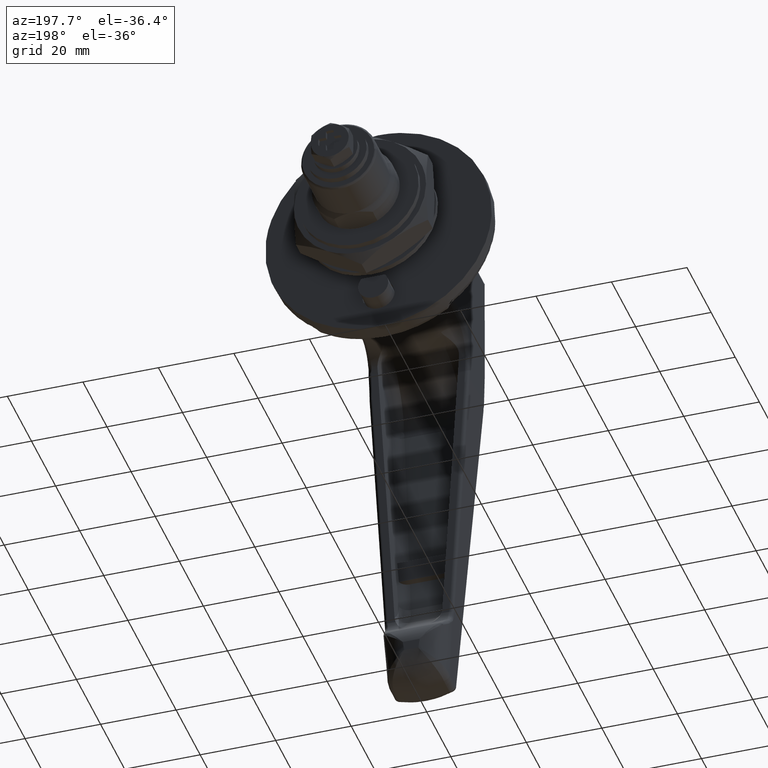
[diagram: clean part render]
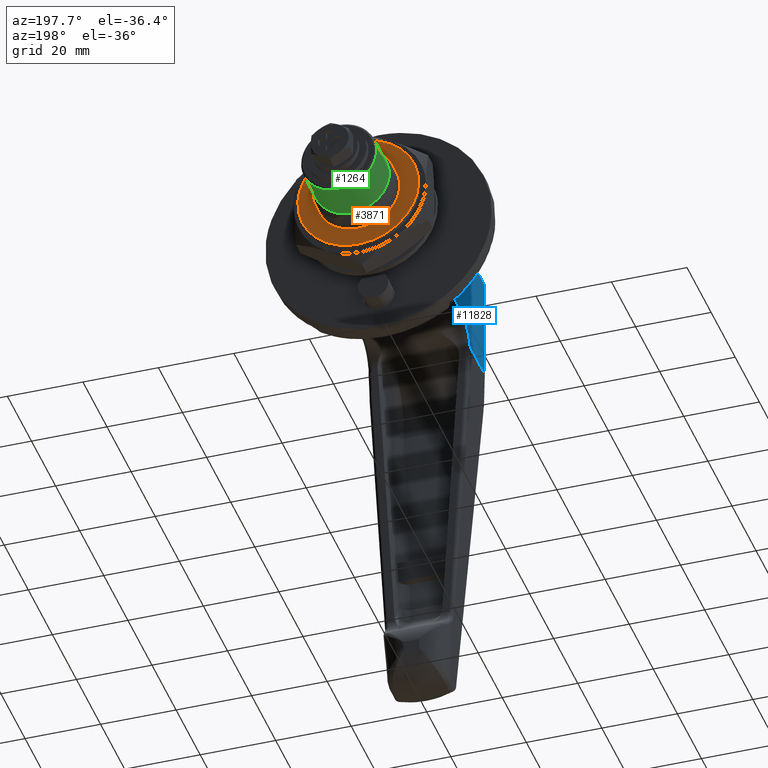
[diagram: same view with three faces highlighted in distinct colors, each labeled with its STEP entity id]
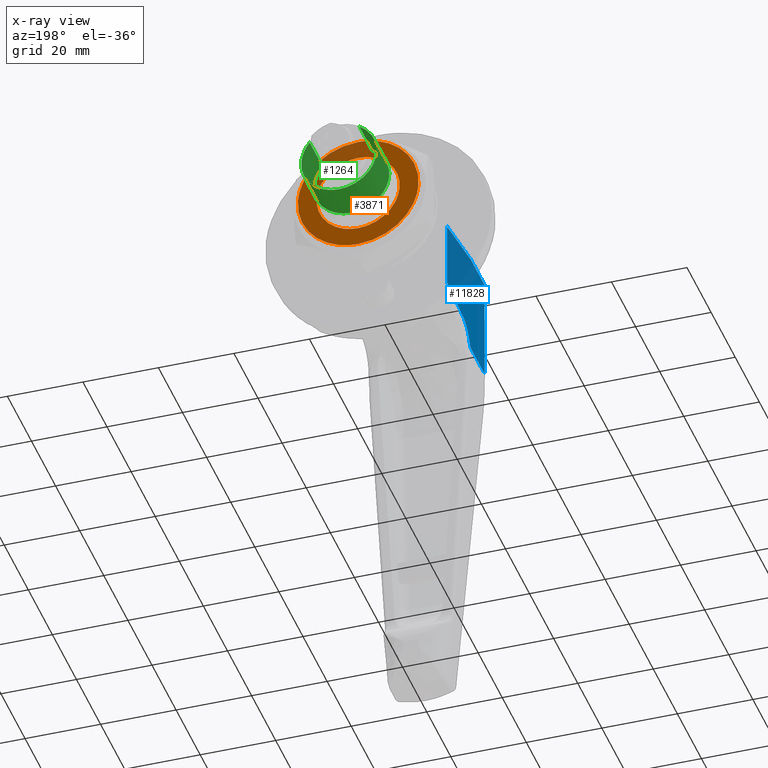
[diagram: x-ray of the same camera — body ghosted, the three highlighted faces saturated]
A machine part, auxiliary view with three faces highlighted in distinct colors.
The next image is the same camera in x-ray (body ghosted, the three faces saturated) — at least one of them is partly hidden behind the body in this view.
Their STEP definitions:

[orange] entity #3871 — the highlighted face is a freeform B-spline surface patch.
#2570=CARTESIAN_POINT('',(62.467903000000092,0.0,10.999999930245510));
#2571=VERTEX_POINT('',#2570);
#2572=CARTESIAN_POINT('',(62.467903000000092,-10.966090671041730,0.863049983539866));
#2573=VERTEX_POINT('',#2572);
#2574=CARTESIAN_POINT('',(62.467903000000092,0.0,10.999999930245510));
#2575=CARTESIAN_POINT('',(62.467903000000092,-10.168295407704424,10.999999930245508));
#2576=CARTESIAN_POINT('',(62.467903000000106,-10.966090671041732,0.863049983539866));
#2584=(BOUNDED_CURVE()B_SPLINE_CURVE(2,(#2574,#2575,#2576),.UNSPECIFIED.,.F.,.U.)B_SPLINE_CURVE_WITH_KNOTS((3,3),(0.0,0.236331300623761),.UNSPECIFIED.)CURVE()GEOMETRIC_REPRESENTATION_ITEM()RATIONAL_B_SPLINE_CURVE((1.0,0.723120658615748,0.969723356153021))REPRESENTATION_ITEM(''));
#2585=EDGE_CURVE('',#2571,#2573,#2584,.T.);
#2626=CARTESIAN_POINT('',(62.467903000000092,10.966090671041741,-0.863050123048846));
#2627=VERTEX_POINT('',#2626);
#2633=CARTESIAN_POINT('',(62.467903000000106,10.966090671041732,-0.863050123048846));
#2634=CARTESIAN_POINT('',(62.467903000000092,11.000000000000004,-0.432191247128252));
#2635=CARTESIAN_POINT('',(62.467903000000092,11.0,-0.000000069754492));
#2636=CARTESIAN_POINT('',(62.467903000000092,11.0,10.999999930245508));
#2637=CARTESIAN_POINT('',(62.467903000000092,0.0,10.999999930245510));
#2645=(BOUNDED_CURVE()B_SPLINE_CURVE(2,(#2633,#2634,#2635,#2636,#2637),.UNSPECIFIED.,.F.,.U.)B_SPLINE_CURVE_WITH_KNOTS((3,2,3),(0.736331300623761,0.750000000000000,1.0),.UNSPECIFIED.)CURVE()GEOMETRIC_REPRESENTATION_ITEM()RATIONAL_B_SPLINE_CURVE((0.969723356153021,0.983986122570800,1.0,0.707106781186548,1.0))REPRESENTATION_ITEM(''));
#2646=EDGE_CURVE('',#2627,#2571,#2645,.T.);
#2669=CARTESIAN_POINT('',(62.467903000000092,0.0,-11.000000069754490));
#2670=VERTEX_POINT('',#2669);
#2671=CARTESIAN_POINT('',(62.467903000000092,-10.966090671041734,0.863049983539866));
#2672=CARTESIAN_POINT('',(62.467903000000092,-11.000000000000005,0.432191107619271));
#2673=CARTESIAN_POINT('',(62.467903000000092,-11.0,-0.000000069754492));
#2674=CARTESIAN_POINT('',(62.467903000000092,-11.0,-11.000000069754492));
#2675=CARTESIAN_POINT('',(62.467903000000092,0.0,-11.000000069754490));
#2683=(BOUNDED_CURVE()B_SPLINE_CURVE(2,(#2671,#2672,#2673,#2674,#2675),.UNSPECIFIED.,.F.,.U.)B_SPLINE_CURVE_WITH_KNOTS((3,2,3),(0.236331300623761,0.250000000000000,0.500000000000000),.UNSPECIFIED.)CURVE()GEOMETRIC_REPRESENTATION_ITEM()RATIONAL_B_SPLINE_CURVE((0.969723356153021,0.983986122570800,1.0,0.707106781186548,1.0))REPRESENTATION_ITEM(''));
#2684=EDGE_CURVE('',#2573,#2670,#2683,.T.);
#2686=CARTESIAN_POINT('',(62.467903000000092,0.0,-11.000000069754490));
#2687=CARTESIAN_POINT('',(62.467903000000085,10.168295407704367,-11.000000069754492));
#2688=CARTESIAN_POINT('',(62.467903000000092,10.966090671041734,-0.863050123048846));
#2696=(BOUNDED_CURVE()B_SPLINE_CURVE(2,(#2686,#2687,#2688),.UNSPECIFIED.,.F.,.U.)B_SPLINE_CURVE_WITH_KNOTS((3,3),(0.500000000000000,0.736331300623760),.UNSPECIFIED.)CURVE()GEOMETRIC_REPRESENTATION_ITEM()RATIONAL_B_SPLINE_CURVE((1.0,0.723120658615749,0.969723356153019))REPRESENTATION_ITEM(''));
#2697=EDGE_CURVE('',#2670,#2627,#2696,.T.);
#2752=CARTESIAN_POINT('',(62.467903000000092,0.0,-16.000000069754488));
#2753=VERTEX_POINT('',#2752);
#2754=CARTESIAN_POINT('',(62.467903000000092,15.950677339713121,-1.255345601615007));
#2755=VERTEX_POINT('',#2754);
#2756=CARTESIAN_POINT('',(62.467903000000092,0.0,-16.000000069754488));
#2757=CARTESIAN_POINT('',(62.467903000000085,14.790247866131336,-16.000000069754485));
#2758=CARTESIAN_POINT('',(62.467903000000092,15.950677339713121,-1.255345601615007));
#2766=(BOUNDED_CURVE()B_SPLINE_CURVE(2,(#2756,#2757,#2758),.UNSPECIFIED.,.F.,.U.)B_SPLINE_CURVE_WITH_KNOTS((3,3),(0.500000000000000,0.736331300628145),.UNSPECIFIED.)CURVE()GEOMETRIC_REPRESENTATION_ITEM()RATIONAL_B_SPLINE_CURVE((1.0,0.723120658610611,0.969723356162171))REPRESENTATION_ITEM(''));
#2767=EDGE_CURVE('',#2753,#2755,#2766,.T.);
#2769=CARTESIAN_POINT('',(62.467903000000092,-15.950677339713121,1.255345462106023));
#2770=VERTEX_POINT('',#2769);
#2771=CARTESIAN_POINT('',(62.467903000000092,-15.950677339713124,1.255345462106022));
#2772=CARTESIAN_POINT('',(62.467903000000085,-16.0,0.628641642584210));
#2773=CARTESIAN_POINT('',(62.467903000000092,-16.0,-0.000000069754492));
#2774=CARTESIAN_POINT('',(62.467903000000092,-15.999999999999998,-16.000000069754499));
#2775=CARTESIAN_POINT('',(62.467903000000092,0.0,-16.000000069754488));
#2783=(BOUNDED_CURVE()B_SPLINE_CURVE(2,(#2771,#2772,#2773,#2774,#2775),.UNSPECIFIED.,.F.,.U.)B_SPLINE_CURVE_WITH_KNOTS((3,2,3),(0.236331300628146,0.250000000000000,0.500000000000000),.UNSPECIFIED.)CURVE()GEOMETRIC_REPRESENTATION_ITEM()RATIONAL_B_SPLINE_CURVE((0.969723356162172,0.983986122575937,1.0,0.707106781186548,1.0))REPRESENTATION_ITEM(''));
#2784=EDGE_CURVE('',#2770,#2753,#2783,.T.);
#2851=CARTESIAN_POINT('',(62.467903000000092,0.0,15.999999930245510));
#2852=VERTEX_POINT('',#2851);
#2853=CARTESIAN_POINT('',(62.467903000000092,15.950677339713126,-1.255345601615007));
#2854=CARTESIAN_POINT('',(62.467903000000099,16.000000000000004,-0.628641782093196));
#2855=CARTESIAN_POINT('',(62.467903000000092,16.0,-0.000000069754492));
#2856=CARTESIAN_POINT('',(62.467903000000092,15.999999999999998,15.999999930245512));
#2857=CARTESIAN_POINT('',(62.467903000000092,0.0,15.999999930245510));
#2865=(BOUNDED_CURVE()B_SPLINE_CURVE(2,(#2853,#2854,#2855,#2856,#2857),.UNSPECIFIED.,.F.,.U.)B_SPLINE_CURVE_WITH_KNOTS((3,2,3),(0.736331300628146,0.750000000000000,1.0),.UNSPECIFIED.)CURVE()GEOMETRIC_REPRESENTATION_ITEM()RATIONAL_B_SPLINE_CURVE((0.969723356162172,0.983986122575937,1.0,0.707106781186548,1.0))REPRESENTATION_ITEM(''));
#2866=EDGE_CURVE('',#2755,#2852,#2865,.T.);
#2900=CARTESIAN_POINT('',(62.467903000000092,0.0,15.999999930245510));
#2901=CARTESIAN_POINT('',(62.467903000000085,-14.790247866131390,15.999999930245512));
#2902=CARTESIAN_POINT('',(62.467903000000092,-15.950677339713124,1.255345462106022));
#2910=(BOUNDED_CURVE()B_SPLINE_CURVE(2,(#2900,#2901,#2902),.UNSPECIFIED.,.F.,.U.)B_SPLINE_CURVE_WITH_KNOTS((3,3),(0.0,0.236331300628146),.UNSPECIFIED.)CURVE()GEOMETRIC_REPRESENTATION_ITEM()RATIONAL_B_SPLINE_CURVE((1.0,0.723120658610611,0.969723356162172))REPRESENTATION_ITEM(''));
#2911=EDGE_CURVE('',#2852,#2770,#2910,.T.);
#3854=CARTESIAN_POINT('',(62.467903000000000,-17.593516043629570,17.598400168616401));
#3855=CARTESIAN_POINT('',(62.467903000000000,17.593516901936461,17.598400168616401));
#3856=CARTESIAN_POINT('',(62.467903000000000,-17.593516043629570,-17.598400880329979));
#3857=CARTESIAN_POINT('',(62.467903000000000,17.593516901936461,-17.598400880329979));
#3858=B_SPLINE_SURFACE_WITH_KNOTS('',1,1,((#3854,#3856),(#3855,#3857)),.UNSPECIFIED.,.F.,.F.,.U.,(2,2),(2,2),(0.0,35.187032945566031),(0.0,35.196801048946377),.UNSPECIFIED.);
#3859=ORIENTED_EDGE('',*,*,#2911,.T.);
#3860=ORIENTED_EDGE('',*,*,#2784,.T.);
#3861=ORIENTED_EDGE('',*,*,#2767,.T.);
#3862=ORIENTED_EDGE('',*,*,#2866,.T.);
#3863=EDGE_LOOP('',(#3859,#3860,#3861,#3862));
#3864=FACE_OUTER_BOUND('',#3863,.T.);
#3865=ORIENTED_EDGE('',*,*,#2697,.F.);
#3866=ORIENTED_EDGE('',*,*,#2684,.F.);
#3867=ORIENTED_EDGE('',*,*,#2585,.F.);
#3868=ORIENTED_EDGE('',*,*,#2646,.F.);
#3869=EDGE_LOOP('',(#3865,#3866,#3867,#3868));
#3870=FACE_BOUND('',#3869,.T.);
#3871=ADVANCED_FACE('',(#3864,#3870),#3858,.F.);

[blue] entity #11828 — the highlighted face is a freeform B-spline surface patch.
#5458=CARTESIAN_POINT('',(-27.813562268313099,13.500000000000000,-10.264880556170439));
#5459=VERTEX_POINT('',#5458);
#5493=CARTESIAN_POINT('',(-33.841073701098701,13.500000000000000,-15.685443348486450));
#5494=VERTEX_POINT('',#5493);
#5508=CARTESIAN_POINT('',(-27.813562268313099,13.500000000000000,-10.264880556170439));
#5509=CARTESIAN_POINT('',(-28.899511659281060,13.500000000000000,-10.375610490617641));
#5510=CARTESIAN_POINT('',(-29.913205834410039,13.500000000000000,-10.884066084933220));
#5511=CARTESIAN_POINT('',(-30.866539593704999,13.500000000000000,-11.362245692803169));
#5512=CARTESIAN_POINT('',(-31.656681593417058,13.500000000000000,-12.140936214071390));
#5513=CARTESIAN_POINT('',(-33.002610498047090,13.500000000000000,-13.467358655503411));
#5514=CARTESIAN_POINT('',(-33.841073701098701,13.500000000000000,-15.685443348486450));
#5515=B_SPLINE_CURVE_WITH_KNOTS('',2,(#5508,#5509,#5510,#5511,#5512,#5513,#5514),.UNSPECIFIED.,.F.,.U.,(3,2,2,3),(0.0,0.250000000000000,0.500000000000000,1.0),.UNSPECIFIED.);
#5516=EDGE_CURVE('',#5459,#5494,#5515,.T.);
#5636=CARTESIAN_POINT('',(-14.600000000000000,13.500000000000000,-8.909342005059822));
#5637=VERTEX_POINT('',#5636);
#5664=CARTESIAN_POINT('',(-14.600000000000000,13.500000000000000,-8.909342005059822));
#5665=CARTESIAN_POINT('',(-19.004149172293179,13.500000000000000,-9.364810325384706));
#5666=CARTESIAN_POINT('',(-23.408693558321779,13.500000000000000,-9.816426168552331));
#5667=CARTESIAN_POINT('',(-27.813562268313099,13.500000000000000,-10.264880556170461));
#5668=QUASI_UNIFORM_CURVE('',3,(#5664,#5665,#5666,#5667),.UNSPECIFIED.,.F.,.U.);
#5669=EDGE_CURVE('',#5637,#5459,#5668,.T.);
#8070=CARTESIAN_POINT('',(-45.760645157680997,13.500000000000000,-15.685443348486450));
#8071=VERTEX_POINT('',#8070);
#8316=CARTESIAN_POINT('',(-45.760645157680997,13.500000000000000,12.065374432940899));
#8317=VERTEX_POINT('',#8316);
#8339=CARTESIAN_POINT('',(-45.760645157680997,13.500000000000000,-15.685443348486450));
#8340=CARTESIAN_POINT('',(-45.760645157680997,13.500000000000000,12.065374432940899));
#8341=QUASI_UNIFORM_CURVE('',1,(#8339,#8340),.UNSPECIFIED.,.F.,.U.);
#8342=EDGE_CURVE('',#8071,#8317,#8341,.T.);
#8975=CARTESIAN_POINT('',(-33.852668409054907,13.500000000000000,11.961433868648861));
#8976=VERTEX_POINT('',#8975);
#8990=CARTESIAN_POINT('',(-35.057057999999898,13.500000000000000,12.065374432940899));
#8991=VERTEX_POINT('',#8990);
#8992=CARTESIAN_POINT('',(-35.057057999999898,13.500000000000000,12.065374432940960));
#8993=CARTESIAN_POINT('',(-34.652604729322647,13.500000000000000,12.065374432940960));
#8994=CARTESIAN_POINT('',(-34.251148343469659,13.500000000000000,12.030648655645271));
#8995=CARTESIAN_POINT('',(-33.852668409054907,13.500000000000000,11.961433868648861));
#8996=QUASI_UNIFORM_CURVE('',3,(#8992,#8993,#8994,#8995),.UNSPECIFIED.,.F.,.U.);
#8997=EDGE_CURVE('',#8991,#8976,#8996,.T.);
#9046=CARTESIAN_POINT('',(-45.760645157680997,13.500000000000000,12.065374432940899));
#9047=CARTESIAN_POINT('',(-35.057057999999898,13.500000000000000,12.065374432940899));
#9048=QUASI_UNIFORM_CURVE('',1,(#9046,#9047),.UNSPECIFIED.,.F.,.U.);
#9049=EDGE_CURVE('',#8317,#8991,#9048,.T.);
#9092=CARTESIAN_POINT('',(-14.600000000000000,13.500000000000000,8.543720048811029));
#9093=VERTEX_POINT('',#9092);
#9114=CARTESIAN_POINT('',(-33.852668409054907,13.500000000000000,11.961433868648861));
#9115=CARTESIAN_POINT('',(-30.641788343620050,13.500000000000000,11.403713864657769));
#9116=CARTESIAN_POINT('',(-27.431779028350139,13.500000000000011,10.841036396990210));
#9117=CARTESIAN_POINT('',(-21.013999645939808,13.500000000000011,9.702932699546283));
#9118=CARTESIAN_POINT('',(-17.806241323901009,13.500000000000000,9.127530314321604));
#9119=CARTESIAN_POINT('',(-14.600000000000000,13.500000000000000,8.543720048811080));
#9120=B_SPLINE_CURVE_WITH_KNOTS('',3,(#9114,#9115,#9116,#9117,#9118,#9119),.UNSPECIFIED.,.F.,.U.,(4,2,4),(0.0,0.500000000000000,1.0),.UNSPECIFIED.);
#9121=EDGE_CURVE('',#8976,#9093,#9120,.T.);
#11608=CARTESIAN_POINT('',(-14.600000000000000,13.500000000000000,-8.909342005059822));
#11609=CARTESIAN_POINT('',(-14.600000000000000,13.500000000000000,8.543720048811029));
#11610=QUASI_UNIFORM_CURVE('',1,(#11608,#11609),.UNSPECIFIED.,.F.,.U.);
#11611=EDGE_CURVE('',#5637,#9093,#11610,.T.);
#11809=CARTESIAN_POINT('',(-47.317120966667133,13.500000000000000,13.451527628191320));
#11810=CARTESIAN_POINT('',(-47.317120966667133,13.500000000000000,-17.071595303178640));
#11811=CARTESIAN_POINT('',(-13.043527255590529,13.500000000000000,13.451527628191320));
#11812=CARTESIAN_POINT('',(-13.043527255590529,13.500000000000000,-17.071595303178640));
#11813=B_SPLINE_SURFACE_WITH_KNOTS('',1,1,((#11809,#11811),(#11810,#11812)),.UNSPECIFIED.,.F.,.F.,.U.,(2,2),(2,2),(0.0,30.523122931369961),(0.0,34.273593711076600),.UNSPECIFIED.);
#11814=ORIENTED_EDGE('',*,*,#5669,.T.);
#11815=ORIENTED_EDGE('',*,*,#5516,.T.);
#11816=CARTESIAN_POINT('',(-33.841073701098701,13.500000000000000,-15.685443348486450));
#11817=CARTESIAN_POINT('',(-45.760645157680997,13.500000000000000,-15.685443348486450));
#11818=QUASI_UNIFORM_CURVE('',1,(#11816,#11817),.UNSPECIFIED.,.F.,.U.);
#11819=EDGE_CURVE('',#5494,#8071,#11818,.T.);
#11820=ORIENTED_EDGE('',*,*,#11819,.T.);
#11821=ORIENTED_EDGE('',*,*,#8342,.T.);
#11822=ORIENTED_EDGE('',*,*,#9049,.T.);
#11823=ORIENTED_EDGE('',*,*,#8997,.T.);
#11824=ORIENTED_EDGE('',*,*,#9121,.T.);
#11825=ORIENTED_EDGE('',*,*,#11611,.F.);
#11826=EDGE_LOOP('',(#11814,#11815,#11820,#11821,#11822,#11823,#11824,#11825));
#11827=FACE_OUTER_BOUND('',#11826,.T.);
#11828=ADVANCED_FACE('',(#11827),#11813,.F.);

[green] entity #1264 — the highlighted face is a freeform B-spline surface patch.
#1124=CARTESIAN_POINT('',(33.112500003272061,5.427276675254211,8.399061131503064));
#1125=CARTESIAN_POINT('',(33.112500003272068,5.913799254940278,8.084681630345395));
#1126=CARTESIAN_POINT('',(33.112500003272061,6.360768209056792,7.716228858136363));
#1127=CARTESIAN_POINT('',(33.112500003272061,14.076997067193155,1.355460649079571));
#1128=CARTESIAN_POINT('',(33.112500003272061,7.716228858136363,-6.360768209056792));
#1129=CARTESIAN_POINT('',(33.112500003272061,1.355460649079571,-14.076997067193155));
#1130=CARTESIAN_POINT('',(33.112500003272061,-6.360768209056792,-7.716228858136363));
#1131=CARTESIAN_POINT('',(33.112500003272061,-14.076997067193155,-1.355460649079571));
#1132=CARTESIAN_POINT('',(33.112500003272061,-7.716228858136363,6.360768209056792));
#1133=CARTESIAN_POINT('',(22.080937499918193,5.427276675254211,8.399061131503064));
#1134=CARTESIAN_POINT('',(22.080937499918186,5.913799254940278,8.084681630345395));
#1135=CARTESIAN_POINT('',(22.080937499918189,6.360768209056792,7.716228858136363));
#1136=CARTESIAN_POINT('',(22.080937499918196,14.076997067193155,1.355460649079571));
#1137=CARTESIAN_POINT('',(22.080937499918189,7.716228858136363,-6.360768209056792));
#1138=CARTESIAN_POINT('',(22.080937499918196,1.355460649079571,-14.076997067193155));
#1139=CARTESIAN_POINT('',(22.080937499918189,-6.360768209056792,-7.716228858136363));
#1140=CARTESIAN_POINT('',(22.080937499918196,-14.076997067193155,-1.355460649079571));
#1141=CARTESIAN_POINT('',(22.080937499918189,-7.716228858136363,6.360768209056792));
#1149=(BOUNDED_SURFACE()B_SPLINE_SURFACE(2,1,((#1124,#1133),(#1125,#1134),(#1126,#1135),(#1127,#1136),(#1128,#1137),(#1129,#1138),(#1130,#1139),(#1131,#1140),(#1132,#1141)),.UNSPECIFIED.,.F.,.F.,.U.)B_SPLINE_SURFACE_WITH_KNOTS((3,2,2,2,3),(2,2),(0.0,1.325480483530424,17.893986527660729,34.462492571791053,51.030998615921362),(0.0,11.031562503353870),.UNSPECIFIED.)GEOMETRIC_REPRESENTATION_ITEM()RATIONAL_B_SPLINE_SURFACE(((0.956886118190660,0.956886118190660),(0.976568542494924,0.976568542494924),(1.0,1.0),(0.707106781186548,0.707106781186548),(1.0,1.0),(0.707106781186548,0.707106781186548),(1.0,1.0),(0.707106781186548,0.707106781186548),(1.0,1.0)))REPRESENTATION_ITEM('')SURFACE());
#1150=CARTESIAN_POINT('',(32.850000000475553,5.427269021743179,8.399066077001859));
#1151=VERTEX_POINT('',#1150);
#1152=CARTESIAN_POINT('',(32.850000002935538,9.999188443773470,0.125660122517163));
#1153=VERTEX_POINT('',#1152);
#1154=CARTESIAN_POINT('',(32.850000000475546,5.427269021743179,8.399066077001860));
#1155=CARTESIAN_POINT('',(32.850000001341265,9.931795316781869,5.488352457787416));
#1156=CARTESIAN_POINT('',(32.850000002935545,9.999188443773470,0.125660122517163));
#1164=(BOUNDED_CURVE()B_SPLINE_CURVE(2,(#1154,#1155,#1156),.UNSPECIFIED.,.F.,.U.)B_SPLINE_CURVE_WITH_KNOTS((3,3),(0.092934603898297,0.247784295916926),.UNSPECIFIED.)CURVE()GEOMETRIC_REPRESENTATION_ITEM()RATIONAL_B_SPLINE_CURVE((0.863190183215649,0.816652340212270,0.994854295632959))REPRESENTATION_ITEM(''));
#1165=EDGE_CURVE('',#1151,#1153,#1164,.T.);
#1166=ORIENTED_EDGE('',*,*,#1165,.T.);
#1167=CARTESIAN_POINT('',(32.849999999999987,0.0,-9.999978000000001));
#1168=VERTEX_POINT('',#1167);
#1169=CARTESIAN_POINT('',(32.850000002935538,9.999188443773470,0.125660122517163));
#1170=CARTESIAN_POINT('',(32.850000000000001,9.999978000000001,0.062832541823536));
#1171=CARTESIAN_POINT('',(32.849999999999987,9.999978000000001,0.0));
#1172=CARTESIAN_POINT('',(32.849999999999994,9.999978000000001,-9.999978000000001));
#1173=CARTESIAN_POINT('',(32.849999999999987,0.0,-9.999978000000001));
#1181=(BOUNDED_CURVE()B_SPLINE_CURVE(2,(#1169,#1170,#1171,#1172,#1173),.UNSPECIFIED.,.F.,.U.)B_SPLINE_CURVE_WITH_KNOTS((3,2,3),(0.247784295916926,0.250000000000000,0.500000000000000),.UNSPECIFIED.)CURVE()GEOMETRIC_REPRESENTATION_ITEM()RATIONAL_B_SPLINE_CURVE((0.994854295632960,0.997404141196681,1.0,0.707106781186547,1.0))REPRESENTATION_ITEM(''));
#1182=EDGE_CURVE('',#1153,#1168,#1181,.T.);
#1183=ORIENTED_EDGE('',*,*,#1182,.T.);
#1184=CARTESIAN_POINT('',(32.850000003192257,-9.975634791935306,-0.697330981968933));
#1185=VERTEX_POINT('',#1184);
#1186=CARTESIAN_POINT('',(32.849999999999987,0.0,-9.999978000000001));
#1187=CARTESIAN_POINT('',(32.850000000000001,-9.325347956207038,-9.999978000000002));
#1188=CARTESIAN_POINT('',(32.850000003192264,-9.975634791935306,-0.697330981968933));
#1196=(BOUNDED_CURVE()B_SPLINE_CURVE(2,(#1186,#1187,#1188),.UNSPECIFIED.,.F.,.U.)B_SPLINE_CURVE_WITH_KNOTS((3,3),(0.500000000000000,0.737833686523203),.UNSPECIFIED.)CURVE()GEOMETRIC_REPRESENTATION_ITEM()RATIONAL_B_SPLINE_CURVE((1.0,0.721360504047797,0.972879876361831))REPRESENTATION_ITEM(''));
#1197=EDGE_CURVE('',#1168,#1185,#1196,.T.);
#1198=ORIENTED_EDGE('',*,*,#1197,.T.);
#1199=CARTESIAN_POINT('',(32.850000000000279,-7.716233922885007,6.360762065015421));
#1200=VERTEX_POINT('',#1199);
#1201=CARTESIAN_POINT('',(32.850000003192264,-9.975634791935306,-0.697330981968933));
#1202=CARTESIAN_POINT('',(32.850000000000001,-9.999978000000001,-0.349090391093884));
#1203=CARTESIAN_POINT('',(32.849999999999987,-9.999978000000001,0.0));
#1204=CARTESIAN_POINT('',(32.849999999999994,-9.999978000000001,3.590354472517619));
#1205=CARTESIAN_POINT('',(32.850000000000286,-7.716233922885007,6.360762065015421));
#1213=(BOUNDED_CURVE()B_SPLINE_CURVE(2,(#1201,#1202,#1203,#1204,#1205),.UNSPECIFIED.,.F.,.U.)B_SPLINE_CURVE_WITH_KNOTS((3,2,3),(0.737833686523203,0.750000000000000,0.860504505437691),.UNSPECIFIED.)CURVE()GEOMETRIC_REPRESENTATION_ITEM()RATIONAL_B_SPLINE_CURVE((0.972879876361830,0.985746277138749,1.0,0.870535918835864,0.855522751759632))REPRESENTATION_ITEM(''));
#1214=EDGE_CURVE('',#1185,#1200,#1213,.T.);
#1215=ORIENTED_EDGE('',*,*,#1214,.T.);
#1216=CARTESIAN_POINT('',(22.350000000000001,-7.716232317503451,6.360764012504294));
#1217=VERTEX_POINT('',#1216);
#1218=CARTESIAN_POINT('',(32.850000000000279,-7.716233922885007,6.360762065015421));
#1219=CARTESIAN_POINT('',(22.350000000000001,-7.716232317503451,6.360764012504294));
#1220=QUASI_UNIFORM_CURVE('',1,(#1218,#1219),.UNSPECIFIED.,.F.,.U.);
#1221=EDGE_CURVE('',#1200,#1217,#1220,.T.);
#1222=ORIENTED_EDGE('',*,*,#1221,.T.);
#1223=CARTESIAN_POINT('',(22.350000000000001,0.0,-9.999978000000001));
#1224=VERTEX_POINT('',#1223);
#1225=CARTESIAN_POINT('',(22.350000000000001,0.0,-9.999978000000001));
#1226=CARTESIAN_POINT('',(22.349999999999994,-9.999978000000001,-9.999978000000001));
#1227=CARTESIAN_POINT('',(22.350000000000001,-9.999978000000001,0.0));
#1228=CARTESIAN_POINT('',(22.350000000000001,-9.999978000000002,3.590355897129783));
#1229=CARTESIAN_POINT('',(22.349999999999998,-7.716232317503451,6.360764012504295));
#1237=(BOUNDED_CURVE()B_SPLINE_CURVE(2,(#1225,#1226,#1227,#1228,#1229),.UNSPECIFIED.,.F.,.U.)B_SPLINE_CURVE_WITH_KNOTS((3,2,3),(0.500000000000000,0.750000000000000,0.860504543608026),.UNSPECIFIED.)CURVE()GEOMETRIC_REPRESENTATION_ITEM()RATIONAL_B_SPLINE_CURVE((1.0,0.707106781186547,1.0,0.870535874116535,0.855522741387984))REPRESENTATION_ITEM(''));
#1238=EDGE_CURVE('',#1224,#1217,#1237,.T.);
#1239=ORIENTED_EDGE('',*,*,#1238,.F.);
#1240=CARTESIAN_POINT('',(22.349999999999991,5.427270079516736,8.399065393506868));
#1241=VERTEX_POINT('',#1240);
#1242=CARTESIAN_POINT('',(22.349999999999994,5.427270079516736,8.399065393506868));
#1243=CARTESIAN_POINT('',(22.350000000000001,9.999978000000001,5.444293675886611));
#1244=CARTESIAN_POINT('',(22.350000000000001,9.999978000000001,0.0));
#1245=CARTESIAN_POINT('',(22.349999999999994,9.999978000000001,-9.999978000000001));
#1246=CARTESIAN_POINT('',(22.350000000000001,0.0,-9.999978000000001));
#1254=(BOUNDED_CURVE()B_SPLINE_CURVE(2,(#1242,#1243,#1244,#1245,#1246),.UNSPECIFIED.,.F.,.U.)B_SPLINE_CURVE_WITH_KNOTS((3,2,3),(0.092934623115721,0.250000000000000,0.500000000000000),.UNSPECIFIED.)CURVE()GEOMETRIC_REPRESENTATION_ITEM()RATIONAL_B_SPLINE_CURVE((0.863190171664614,0.815986464800861,1.0,0.707106781186547,1.0))REPRESENTATION_ITEM(''));
#1255=EDGE_CURVE('',#1241,#1224,#1254,.T.);
#1256=ORIENTED_EDGE('',*,*,#1255,.F.);
#1257=CARTESIAN_POINT('',(32.850000000475553,5.427269021743179,8.399066077001859));
#1258=CARTESIAN_POINT('',(22.349999999999991,5.427270079516736,8.399065393506868));
#1259=QUASI_UNIFORM_CURVE('',1,(#1257,#1258),.UNSPECIFIED.,.F.,.U.);
#1260=EDGE_CURVE('',#1151,#1241,#1259,.T.);
#1261=ORIENTED_EDGE('',*,*,#1260,.F.);
#1262=EDGE_LOOP('',(#1166,#1183,#1198,#1215,#1222,#1239,#1256,#1261));
#1263=FACE_OUTER_BOUND('',#1262,.T.);
#1264=ADVANCED_FACE('',(#1263),#1149,.T.);